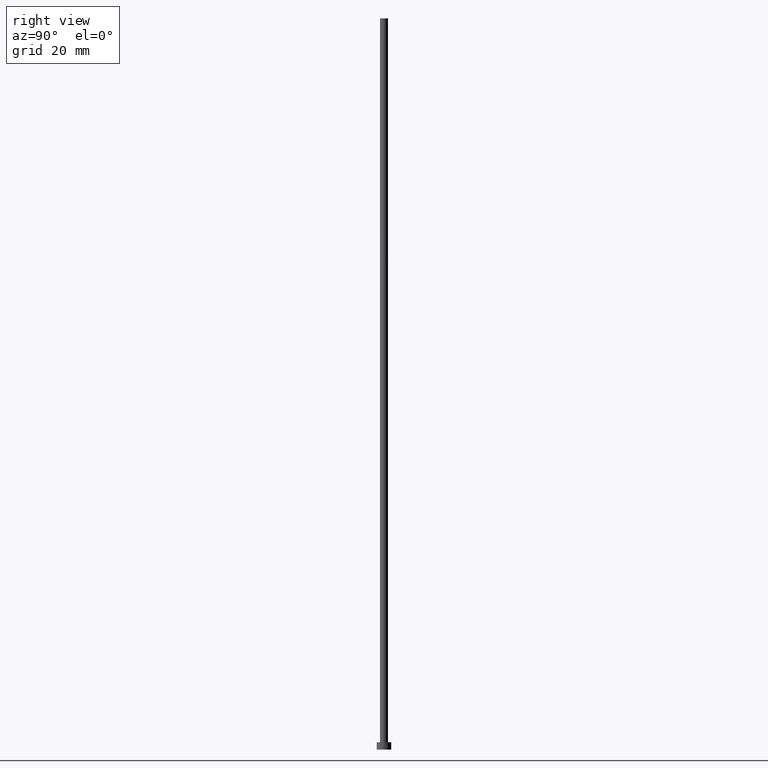
[diagram: clean part render]
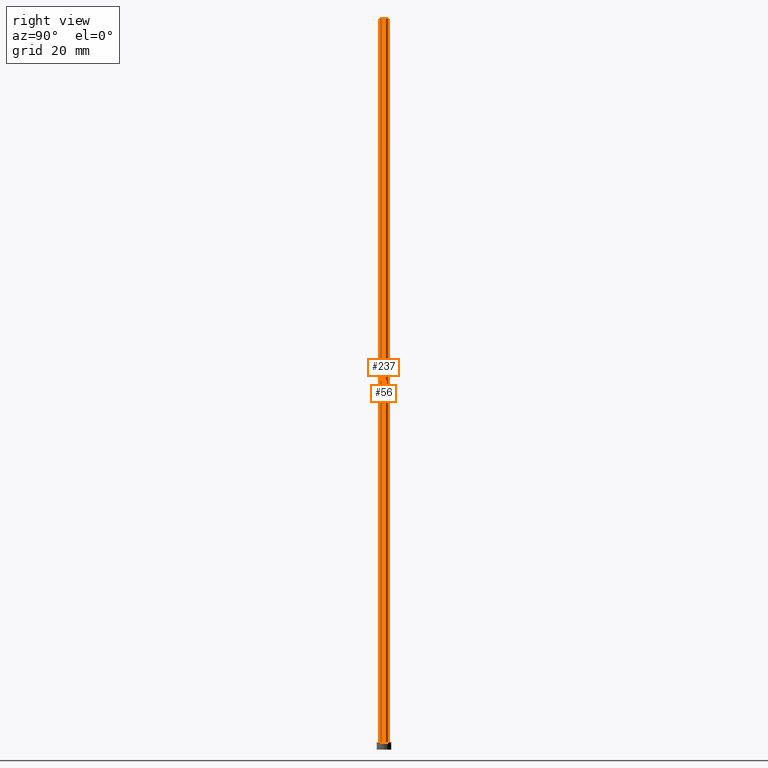
[diagram: same view with one multi-face feature highlighted, each face labeled with its STEP entity id]
A machine part, right view. The highlighted faces form ONE feature: a constant-radius fillet chain: 2 tangent blend faces with common blend radius 1.1 mm. The faces share edges in the B-rep.
Their STEP definitions:
[1] entity #237 (Cylinder):
#9 = DIRECTION ( 'NONE',  ( 0.000000000000000000, 0.000000000000000000, 1.000000000000000000 ) ) ;
#13 = CIRCLE ( 'NONE', #166, 1.100000000000000089 ) ;
#21 = DIRECTION ( 'NONE',  ( 1.000000000000000000, 0.000000000000000000, 0.000000000000000000 ) ) ;
#35 = CARTESIAN_POINT ( 'NONE',  ( 0.000000000000000000, 0.000000000000000000, 2.000000000000000000 ) ) ;
#46 = CARTESIAN_POINT ( 'NONE',  ( 0.000000000000000000, 0.000000000000000000, 200.0000000000000000 ) ) ;
#50 = VERTEX_POINT ( 'NONE', #79 ) ;
#54 = CARTESIAN_POINT ( 'NONE',  ( -1.100000000000000089, 0.000000000000000000, 200.0000000000000000 ) ) ;
#59 = DIRECTION ( 'NONE',  ( -0.000000000000000000, -0.000000000000000000, -1.000000000000000000 ) ) ;
#66 = VERTEX_POINT ( 'NONE', #141 ) ;
#71 = FACE_OUTER_BOUND ( 'NONE', #188, .T. ) ;
#78 = EDGE_CURVE ( 'NONE', #250, #122, #13, .T. ) ;
#79 = CARTESIAN_POINT ( 'NONE',  ( -1.100000000000000089, 0.000000000000000000, 2.000000000000000000 ) ) ;
#91 = DIRECTION ( 'NONE',  ( 0.000000000000000000, 0.000000000000000000, 1.000000000000000000 ) ) ;
#94 = LINE ( 'NONE', #213, #214 ) ;
#97 = ORIENTED_EDGE ( 'NONE', *, *, #229, .T. ) ;
#110 = CARTESIAN_POINT ( 'NONE',  ( 0.000000000000000000, 0.000000000000000000, 200.0000000000000000 ) ) ;
#113 = AXIS2_PLACEMENT_3D ( 'NONE', #110, #194, #169 ) ;
#122 = VERTEX_POINT ( 'NONE', #183 ) ;
#129 = EDGE_CURVE ( 'NONE', #122, #66, #179, .T. ) ;
#141 = CARTESIAN_POINT ( 'NONE',  ( 1.100000000000000089, 1.347111479062088503E-16, 2.000000000000000000 ) ) ;
#149 = CYLINDRICAL_SURFACE ( 'NONE', #113, 1.100000000000000089 ) ;
#164 = VECTOR ( 'NONE', #59, 1000.000000000000000 ) ;
#166 = AXIS2_PLACEMENT_3D ( 'NONE', #46, #9, #21 ) ;
#169 = DIRECTION ( 'NONE',  ( -1.000000000000000000, 0.000000000000000000, 0.000000000000000000 ) ) ;
#172 = EDGE_CURVE ( 'NONE', #50, #66, #251, .T. ) ;
#179 = LINE ( 'NONE', #204, #164 ) ;
#181 = AXIS2_PLACEMENT_3D ( 'NONE', #35, #91, #210 ) ;
#183 = CARTESIAN_POINT ( 'NONE',  ( 1.100000000000000089, 1.347111479062088503E-16, 200.0000000000000000 ) ) ;
#188 = EDGE_LOOP ( 'NONE', ( #225, #217, #97, #205 ) ) ;
#194 = DIRECTION ( 'NONE',  ( -0.000000000000000000, -0.000000000000000000, -1.000000000000000000 ) ) ;
#204 = CARTESIAN_POINT ( 'NONE',  ( 1.100000000000000089, 1.347111479062088503E-16, 200.0000000000000000 ) ) ;
#205 = ORIENTED_EDGE ( 'NONE', *, *, #172, .T. ) ;
#210 = DIRECTION ( 'NONE',  ( 1.000000000000000000, 0.000000000000000000, 0.000000000000000000 ) ) ;
#213 = CARTESIAN_POINT ( 'NONE',  ( -1.100000000000000089, 0.000000000000000000, 200.0000000000000000 ) ) ;
#214 = VECTOR ( 'NONE', #253, 1000.000000000000000 ) ;
#217 = ORIENTED_EDGE ( 'NONE', *, *, #78, .F. ) ;
#225 = ORIENTED_EDGE ( 'NONE', *, *, #129, .F. ) ;
#229 = EDGE_CURVE ( 'NONE', #250, #50, #94, .T. ) ;
#237 = ADVANCED_FACE ( 'NONE', ( #71 ), #149, .T. ) ;
#250 = VERTEX_POINT ( 'NONE', #54 ) ;
#251 = CIRCLE ( 'NONE', #181, 1.100000000000000089 ) ;
#253 = DIRECTION ( 'NONE',  ( -0.000000000000000000, -0.000000000000000000, -1.000000000000000000 ) ) ;
[2] entity #56 (Cylinder):
#6 = ORIENTED_EDGE ( 'NONE', *, *, #129, .T. ) ;
#11 = ORIENTED_EDGE ( 'NONE', *, *, #126, .T. ) ;
#17 = CIRCLE ( 'NONE', #147, 1.100000000000000089 ) ;
#25 = DIRECTION ( 'NONE',  ( 1.000000000000000000, 0.000000000000000000, 0.000000000000000000 ) ) ;
#49 = CARTESIAN_POINT ( 'NONE',  ( 0.000000000000000000, 0.000000000000000000, 2.000000000000000000 ) ) ;
#50 = VERTEX_POINT ( 'NONE', #79 ) ;
#54 = CARTESIAN_POINT ( 'NONE',  ( -1.100000000000000089, 0.000000000000000000, 200.0000000000000000 ) ) ;
#55 = DIRECTION ( 'NONE',  ( 1.000000000000000000, 0.000000000000000000, 0.000000000000000000 ) ) ;
#56 = ADVANCED_FACE ( 'NONE', ( #160 ), #139, .T. ) ;
#59 = DIRECTION ( 'NONE',  ( -0.000000000000000000, -0.000000000000000000, -1.000000000000000000 ) ) ;
#63 = DIRECTION ( 'NONE',  ( -1.000000000000000000, 0.000000000000000000, 0.000000000000000000 ) ) ;
#66 = VERTEX_POINT ( 'NONE', #141 ) ;
#79 = CARTESIAN_POINT ( 'NONE',  ( -1.100000000000000089, 0.000000000000000000, 2.000000000000000000 ) ) ;
#82 = EDGE_LOOP ( 'NONE', ( #124, #6, #11, #244 ) ) ;
#86 = DIRECTION ( 'NONE',  ( 0.000000000000000000, 0.000000000000000000, 1.000000000000000000 ) ) ;
#94 = LINE ( 'NONE', #213, #214 ) ;
#107 = CIRCLE ( 'NONE', #226, 1.100000000000000089 ) ;
#120 = CARTESIAN_POINT ( 'NONE',  ( 0.000000000000000000, 0.000000000000000000, 200.0000000000000000 ) ) ;
#122 = VERTEX_POINT ( 'NONE', #183 ) ;
#124 = ORIENTED_EDGE ( 'NONE', *, *, #190, .F. ) ;
#126 = EDGE_CURVE ( 'NONE', #66, #50, #107, .T. ) ;
#129 = EDGE_CURVE ( 'NONE', #122, #66, #179, .T. ) ;
#139 = CYLINDRICAL_SURFACE ( 'NONE', #254, 1.100000000000000089 ) ;
#141 = CARTESIAN_POINT ( 'NONE',  ( 1.100000000000000089, 1.347111479062088503E-16, 2.000000000000000000 ) ) ;
#147 = AXIS2_PLACEMENT_3D ( 'NONE', #150, #236, #55 ) ;
#150 = CARTESIAN_POINT ( 'NONE',  ( 0.000000000000000000, 0.000000000000000000, 200.0000000000000000 ) ) ;
#160 = FACE_OUTER_BOUND ( 'NONE', #82, .T. ) ;
#164 = VECTOR ( 'NONE', #59, 1000.000000000000000 ) ;
#179 = LINE ( 'NONE', #204, #164 ) ;
#183 = CARTESIAN_POINT ( 'NONE',  ( 1.100000000000000089, 1.347111479062088503E-16, 200.0000000000000000 ) ) ;
#190 = EDGE_CURVE ( 'NONE', #122, #250, #17, .T. ) ;
#202 = DIRECTION ( 'NONE',  ( -0.000000000000000000, -0.000000000000000000, -1.000000000000000000 ) ) ;
#204 = CARTESIAN_POINT ( 'NONE',  ( 1.100000000000000089, 1.347111479062088503E-16, 200.0000000000000000 ) ) ;
#213 = CARTESIAN_POINT ( 'NONE',  ( -1.100000000000000089, 0.000000000000000000, 200.0000000000000000 ) ) ;
#214 = VECTOR ( 'NONE', #253, 1000.000000000000000 ) ;
#226 = AXIS2_PLACEMENT_3D ( 'NONE', #49, #86, #25 ) ;
#229 = EDGE_CURVE ( 'NONE', #250, #50, #94, .T. ) ;
#236 = DIRECTION ( 'NONE',  ( 0.000000000000000000, 0.000000000000000000, 1.000000000000000000 ) ) ;
#244 = ORIENTED_EDGE ( 'NONE', *, *, #229, .F. ) ;
#250 = VERTEX_POINT ( 'NONE', #54 ) ;
#253 = DIRECTION ( 'NONE',  ( -0.000000000000000000, -0.000000000000000000, -1.000000000000000000 ) ) ;
#254 = AXIS2_PLACEMENT_3D ( 'NONE', #120, #202, #63 ) ;